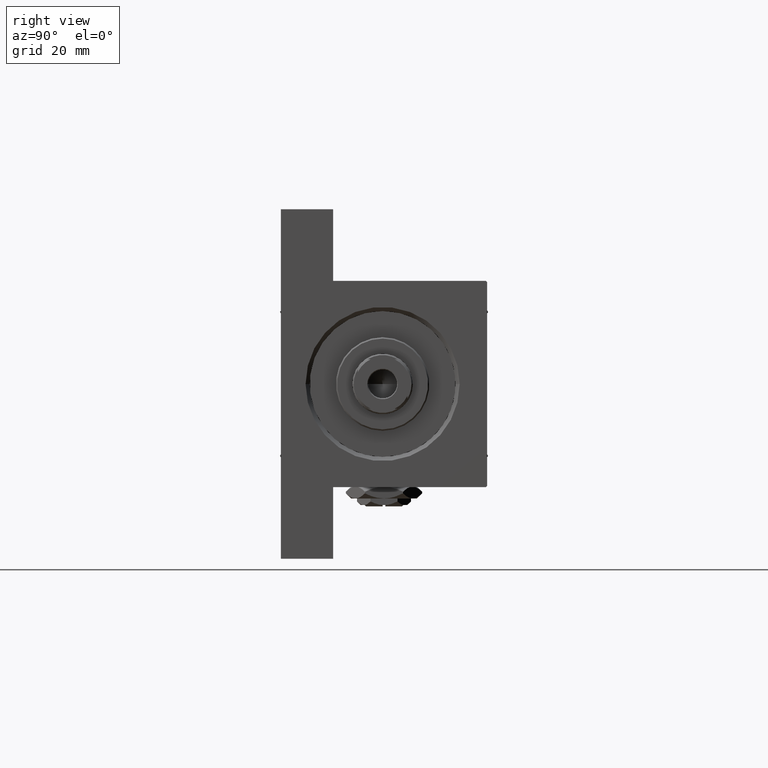
[diagram: clean part render]
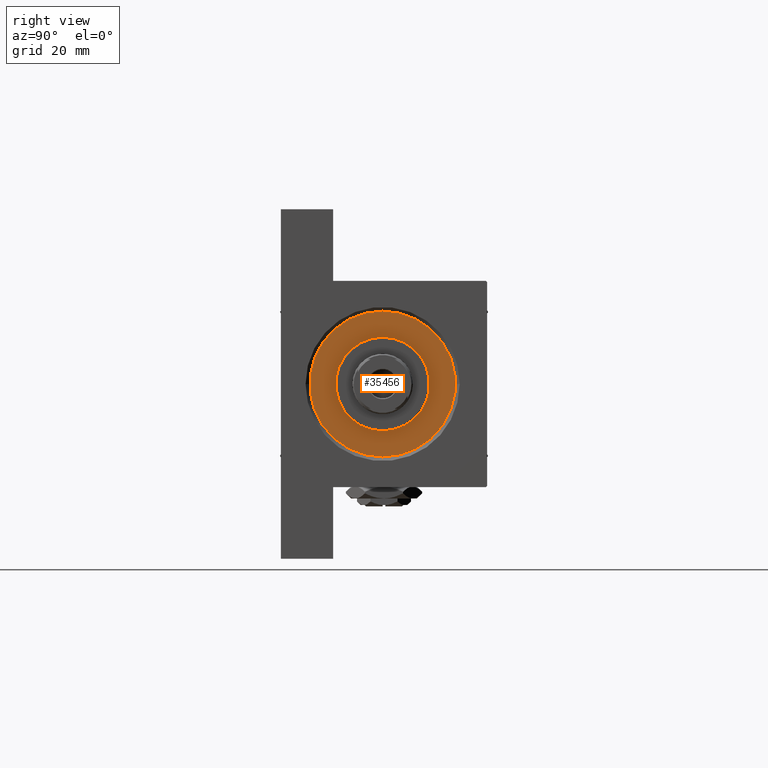
[diagram: same view with one face highlighted and labeled with its STEP entity id]
A machine part, right view. The second image highlights one B-rep face of the part: STEP entity #35456.
In plain terms, the highlighted planar face has unit normal (1, 0, 0).
Its self-contained STEP definition (entity closure, byte-faithful):
#1313 = ORIENTED_EDGE ( 'NONE', *, *, #25658, .T. ) ;
#1702 = EDGE_LOOP ( 'NONE', ( #24470, #1313 ) ) ;
#1715 = CARTESIAN_POINT ( 'NONE',  ( 0.000000000000000000, 0.000000000000000000, 28.69999999999999929 ) ) ;
#1962 = CARTESIAN_POINT ( 'NONE',  ( -26.50000000000000355, 0.000000000000000000, 28.69999999999999929 ) ) ;
#2287 = AXIS2_PLACEMENT_3D ( 'NONE', #30213, #38423, #7569 ) ;
#3146 = DIRECTION ( 'NONE',  ( 0.000000000000000000, 0.000000000000000000, 1.000000000000000000 ) ) ;
#3334 = EDGE_CURVE ( 'NONE', #5776, #39081, #38025, .T. ) ;
#5776 = VERTEX_POINT ( 'NONE', #42116 ) ;
#5833 = DIRECTION ( 'NONE',  ( 1.000000000000000000, 0.000000000000000000, 0.000000000000000000 ) ) ;
#6171 = EDGE_CURVE ( 'NONE', #39081, #5776, #41328, .T. ) ;
#6416 = CIRCLE ( 'NONE', #23119, 26.50000000000000355 ) ;
#7569 = DIRECTION ( 'NONE',  ( 1.000000000000000000, 0.000000000000000000, 0.000000000000000000 ) ) ;
#13866 = PLANE ( 'NONE',  #16030 ) ;
#16030 = AXIS2_PLACEMENT_3D ( 'NONE', #47477, #3146, #43979 ) ;
#21004 = DIRECTION ( 'NONE',  ( 0.000000000000000000, 0.000000000000000000, 1.000000000000000000 ) ) ;
#21241 = CARTESIAN_POINT ( 'NONE',  ( 0.000000000000000000, 0.000000000000000000, 28.69999999999999929 ) ) ;
#21360 = CIRCLE ( 'NONE', #2287, 26.50000000000000355 ) ;
#21451 = AXIS2_PLACEMENT_3D ( 'NONE', #1715, #36064, #39544 ) ;
#21561 = FACE_OUTER_BOUND ( 'NONE', #1702, .T. ) ;
#23119 = AXIS2_PLACEMENT_3D ( 'NONE', #21241, #21004, #5833 ) ;
#23818 = ORIENTED_EDGE ( 'NONE', *, *, #6171, .F. ) ;
#23867 = CARTESIAN_POINT ( 'NONE',  ( 26.50000000000000355, 3.245314017740486554E-15, 28.69999999999999929 ) ) ;
#24470 = ORIENTED_EDGE ( 'NONE', *, *, #29727, .T. ) ;
#25658 = EDGE_CURVE ( 'NONE', #43431, #48949, #21360, .T. ) ;
#27172 = EDGE_LOOP ( 'NONE', ( #44081, #23818 ) ) ;
#29727 = EDGE_CURVE ( 'NONE', #48949, #43431, #6416, .T. ) ;
#30213 = CARTESIAN_POINT ( 'NONE',  ( 0.000000000000000000, 0.000000000000000000, 28.69999999999999929 ) ) ;
#33992 = CARTESIAN_POINT ( 'NONE',  ( 17.00000000000000000, 2.081899558550500280E-15, 28.69999999999999929 ) ) ;
#35456 = ADVANCED_FACE ( 'NONE', ( #37238, #21561 ), #13866, .T. ) ;
#36064 = DIRECTION ( 'NONE',  ( 0.000000000000000000, 0.000000000000000000, 1.000000000000000000 ) ) ;
#37238 = FACE_BOUND ( 'NONE', #27172, .T. ) ;
#38025 = CIRCLE ( 'NONE', #48382, 17.00000000000000000 ) ;
#38423 = DIRECTION ( 'NONE',  ( 0.000000000000000000, 0.000000000000000000, 1.000000000000000000 ) ) ;
#38908 = DIRECTION ( 'NONE',  ( 1.000000000000000000, 0.000000000000000000, 0.000000000000000000 ) ) ;
#39081 = VERTEX_POINT ( 'NONE', #33992 ) ;
#39544 = DIRECTION ( 'NONE',  ( 1.000000000000000000, 0.000000000000000000, 0.000000000000000000 ) ) ;
#41328 = CIRCLE ( 'NONE', #21451, 17.00000000000000000 ) ;
#42116 = CARTESIAN_POINT ( 'NONE',  ( -17.00000000000000000, 0.000000000000000000, 28.69999999999999929 ) ) ;
#42644 = DIRECTION ( 'NONE',  ( 0.000000000000000000, 0.000000000000000000, 1.000000000000000000 ) ) ;
#43431 = VERTEX_POINT ( 'NONE', #23867 ) ;
#43979 = DIRECTION ( 'NONE',  ( 1.000000000000000000, 0.000000000000000000, -0.000000000000000000 ) ) ;
#44081 = ORIENTED_EDGE ( 'NONE', *, *, #3334, .F. ) ;
#46408 = CARTESIAN_POINT ( 'NONE',  ( 0.000000000000000000, 0.000000000000000000, 28.69999999999999929 ) ) ;
#47477 = CARTESIAN_POINT ( 'NONE',  ( 0.000000000000000000, 0.000000000000000000, 28.69999999999999929 ) ) ;
#48382 = AXIS2_PLACEMENT_3D ( 'NONE', #46408, #42644, #38908 ) ;
#48949 = VERTEX_POINT ( 'NONE', #1962 ) ;